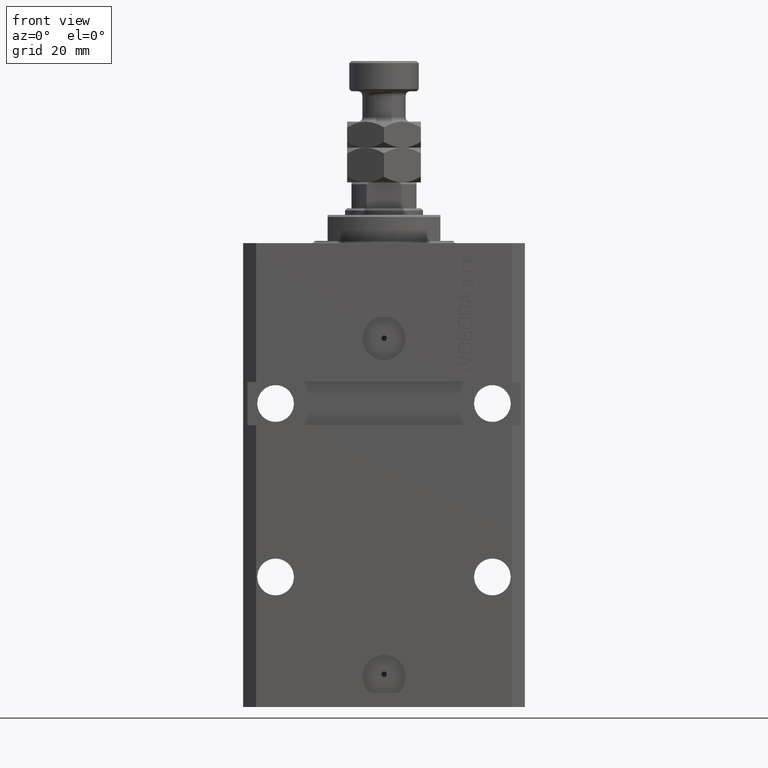
[diagram: clean part render]
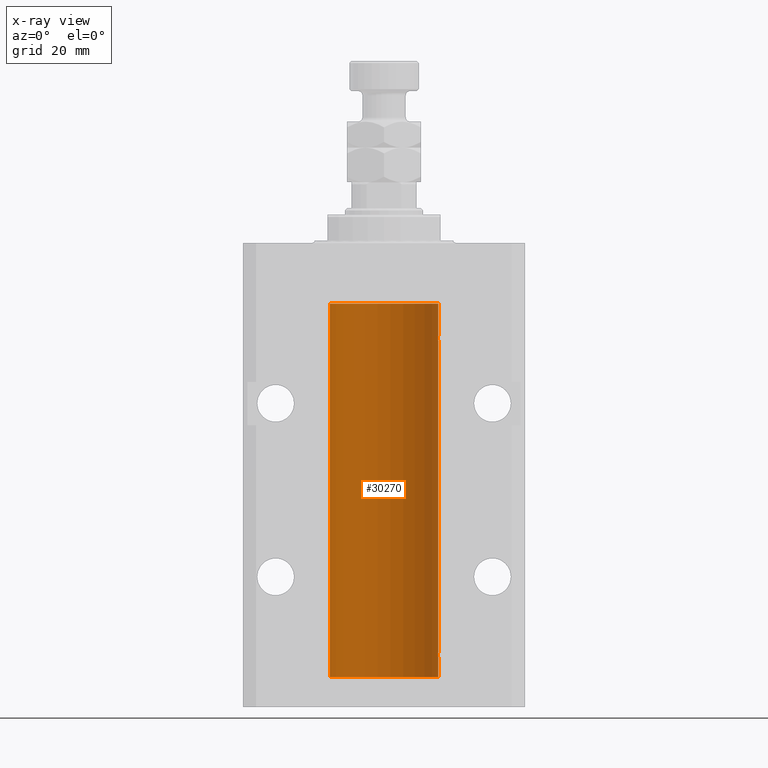
[diagram: x-ray — body ghosted, one internal face saturated and labeled with its STEP entity id]
A machine part, front view, then the same camera in x-ray: the body is ghosted and one INTERNAL B-rep face — a face not visible from any outside direction — is saturated and labeled: STEP entity #30270.
In plain terms, the highlighted cylindrical surface (partial cylindrical patch) has radius 12.5 mm, axis along (0, 0, 1).
Its self-contained STEP definition (entity closure, byte-faithful):
#18 = B_SPLINE_CURVE_WITH_KNOTS ( 'NONE', 3,
 ( #36995, #4348, #8154, #15307, #33656, #43344, #39285, #20943 ),
 .UNSPECIFIED., .F., .F.,
 ( 4, 2, 2, 4 ),
 ( 1.784246692340212412E-18, 0.0002443481056285665750, 0.0004886962112571313068, 0.0009773924225142606621 ),
 .UNSPECIFIED. ) ;
#25 = ORIENTED_EDGE ( 'NONE', *, *, #9317, .T. ) ;
#150 = ORIENTED_EDGE ( 'NONE', *, *, #23760, .T. ) ;
#1082 = ORIENTED_EDGE ( 'NONE', *, *, #21774, .F. ) ;
#1137 = VECTOR ( 'NONE', #8740, 1000.000000000000000 ) ;
#1195 = AXIS2_PLACEMENT_3D ( 'NONE', #35405, #6574, #38515 ) ;
#1267 = EDGE_CURVE ( 'NONE', #7777, #36564, #29805, .T. ) ;
#1437 = CARTESIAN_POINT ( 'NONE',  ( 12.50000000000000000, -1.470318446642941360E-15, -22.62500000000000000 ) ) ;
#1466 = CARTESIAN_POINT ( 'NONE',  ( -12.48810268015257741, 0.5573155909661239304, -94.67347410093871929 ) ) ;
#1546 = CARTESIAN_POINT ( 'NONE',  ( 12.50000000000000000, 0.000000000000000000, -100.0999999999999943 ) ) ;
#1794 = DIRECTION ( 'NONE',  ( -0.000000000000000000, -0.000000000000000000, 1.000000000000000000 ) ) ;
#1835 = CARTESIAN_POINT ( 'NONE',  ( -12.50000000000000000, -2.089494013101375120E-17, -21.37499999999999645 ) ) ;
#2223 = VERTEX_POINT ( 'NONE', #16992 ) ;
#2292 = CYLINDRICAL_SURFACE ( 'NONE', #1195, 12.50000000000000000 ) ;
#2616 = VERTEX_POINT ( 'NONE', #46674 ) ;
#3087 = VERTEX_POINT ( 'NONE', #1546 ) ;
#3382 = EDGE_CURVE ( 'NONE', #7777, #22558, #43924, .T. ) ;
#3863 = CARTESIAN_POINT ( 'NONE',  ( -12.48520330846397819, 0.6088355886774127201, -22.16325431852561323 ) ) ;
#4032 = CARTESIAN_POINT ( 'NONE',  ( 12.49999999999999112, 0.1631389616600879555, -21.37500000000019185 ) ) ;
#4093 = CARTESIAN_POINT ( 'NONE',  ( -12.50000000000017941, 3.883381646606358354E-13, -22.62500000000358824 ) ) ;
#4348 = CARTESIAN_POINT ( 'NONE',  ( 12.49999999999999822, 0.08262306818362624705, -95.62499999999998579 ) ) ;
#5142 = CARTESIAN_POINT ( 'NONE',  ( 12.50000000000000000, 0.000000000000000000, -100.0999999999999943 ) ) ;
#6040 = CARTESIAN_POINT ( 'NONE',  ( 12.50000000000017941, 3.868073689162038701E-13, -94.37499999999640465 ) ) ;
#6441 = VECTOR ( 'NONE', #22583, 1000.000000000000000 ) ;
#6519 = B_SPLINE_CURVE_WITH_KNOTS ( 'NONE', 3,
 ( #22765, #29443, #23942, #24171, #13201, #45148, #30614, #6040 ),
 .UNSPECIFIED., .F., .F.,
 ( 4, 2, 2, 4 ),
 ( 0.0009773924225142606621, 0.001221629287363811033, 0.001465866152213361404, 0.001954339881912461711 ),
 .UNSPECIFIED. ) ;
#6574 = DIRECTION ( 'NONE',  ( -0.000000000000000000, -0.000000000000000000, 1.000000000000000000 ) ) ;
#6652 = EDGE_CURVE ( 'NONE', #35313, #26614, #27574, .T. ) ;
#6739 = VERTEX_POINT ( 'NONE', #13029 ) ;
#7777 = VERTEX_POINT ( 'NONE', #23327 ) ;
#8154 = CARTESIAN_POINT ( 'NONE',  ( 12.49915742890631876, 0.1636982395582385896, -95.60872397847028026 ) ) ;
#8260 = CARTESIAN_POINT ( 'NONE',  ( 12.50000000000000000, 0.000000000000000000, -100.0999999999999943 ) ) ;
#8733 = LINE ( 'NONE', #8260, #6441 ) ;
#8740 = DIRECTION ( 'NONE',  ( -0.000000000000000000, -0.000000000000000000, 1.000000000000000000 ) ) ;
#9317 = EDGE_CURVE ( 'NONE', #25329, #22558, #42911, .T. ) ;
#9599 = VECTOR ( 'NONE', #1794, 1000.000000000000000 ) ;
#9791 = CARTESIAN_POINT ( 'NONE',  ( 0.000000000000000000, 0.000000000000000000, -13.99999999999999822 ) ) ;
#10554 = VERTEX_POINT ( 'NONE', #23988 ) ;
#10598 = ORIENTED_EDGE ( 'NONE', *, *, #3382, .F. ) ;
#11654 = CARTESIAN_POINT ( 'NONE',  ( 12.48810305280568222, 0.5461368461738448365, -21.68525466142676805 ) ) ;
#12192 = CARTESIAN_POINT ( 'NONE',  ( -12.50000000000017941, 3.883381774819353300E-13, -95.62500000000359535 ) ) ;
#12406 = CIRCLE ( 'NONE', #32180, 12.50000000000000000 ) ;
#12634 = EDGE_CURVE ( 'NONE', #14368, #6739, #18, .T. ) ;
#12903 = CARTESIAN_POINT ( 'NONE',  ( -12.48809959379011403, 0.5462151254764922026, -95.31461370481613926 ) ) ;
#13029 = CARTESIAN_POINT ( 'NONE',  ( 12.48436522214846711, 0.6250000000078848039, -94.99999999999923261 ) ) ;
#13201 = CARTESIAN_POINT ( 'NONE',  ( 12.49012055744648997, 0.5002956126656082914, -94.61641710202405875 ) ) ;
#13774 = EDGE_CURVE ( 'NONE', #26614, #36726, #21544, .T. ) ;
#14256 = ORIENTED_EDGE ( 'NONE', *, *, #12634, .T. ) ;
#14368 = VERTEX_POINT ( 'NONE', #43243 ) ;
#14767 = CARTESIAN_POINT ( 'NONE',  ( 12.48436522214888100, 0.6249999999996762590, -21.91847339462350774 ) ) ;
#15062 = CARTESIAN_POINT ( 'NONE',  ( -12.49011732893843529, 0.5003763274120274218, -22.38348111289287701 ) ) ;
#15082 = DIRECTION ( 'NONE',  ( -0.000000000000000000, -0.000000000000000000, 1.000000000000000000 ) ) ;
#15307 = CARTESIAN_POINT ( 'NONE',  ( 12.49625698805481022, 0.3151108292486944906, -95.54593695688171806 ) ) ;
#15592 = CARTESIAN_POINT ( 'NONE',  ( -12.50000000000000000, 1.530808498934191521E-15, -100.0999999999999943 ) ) ;
#15733 = CARTESIAN_POINT ( 'NONE',  ( 12.49999999999999822, 0.08262306818362555316, -22.62499999999997513 ) ) ;
#16885 = ORIENTED_EDGE ( 'NONE', *, *, #13774, .T. ) ;
#16992 = CARTESIAN_POINT ( 'NONE',  ( 12.50000000000000000, 0.000000000000000000, -13.99999999999999822 ) ) ;
#18496 = CIRCLE ( 'NONE', #40570, 12.50000000000000000 ) ;
#18512 = ORIENTED_EDGE ( 'NONE', *, *, #19826, .F. ) ;
#18634 = CARTESIAN_POINT ( 'NONE',  ( -12.48436813453758454, 0.6249418250771192618, -21.83668996798922635 ) ) ;
#18829 = LINE ( 'NONE', #37164, #20013 ) ;
#19208 = DIRECTION ( 'NONE',  ( 0.000000000000000000, 0.000000000000000000, 1.000000000000000000 ) ) ;
#19808 = CARTESIAN_POINT ( 'NONE',  ( -12.48436376893640620, 0.6250290278979871994, -95.08132082824478459 ) ) ;
#19826 = EDGE_CURVE ( 'NONE', #3087, #24601, #12406, .T. ) ;
#20013 = VECTOR ( 'NONE', #40045, 1000.000000000000000 ) ;
#20201 = CARTESIAN_POINT ( 'NONE',  ( -12.50000000000017941, 3.883381774819353300E-13, -95.62500000000359535 ) ) ;
#20261 = EDGE_CURVE ( 'NONE', #36726, #10554, #43040, .T. ) ;
#20637 = FACE_OUTER_BOUND ( 'NONE', #45355, .T. ) ;
#20943 = CARTESIAN_POINT ( 'NONE',  ( 12.48436522214846711, 0.6250000000078848039, -94.99999999999923261 ) ) ;
#21544 = B_SPLINE_CURVE_WITH_KNOTS ( 'NONE', 3,
 ( #1437, #15733, #36944, #37403, #37645, #30516, #44816, #29582 ),
 .UNSPECIFIED., .F., .F.,
 ( 4, 2, 2, 4 ),
 ( 2.576359803311334014E-18, 0.0002443481056285645150, 0.0004886962112571264279, 0.0009773924225142506875 ),
 .UNSPECIFIED. ) ;
#21774 = EDGE_CURVE ( 'NONE', #24601, #36564, #31049, .T. ) ;
#21854 = CARTESIAN_POINT ( 'NONE',  ( -12.50000000000017941, 3.883381646606358354E-13, -22.62500000000358824 ) ) ;
#22558 = VERTEX_POINT ( 'NONE', #21854 ) ;
#22583 = DIRECTION ( 'NONE',  ( -0.000000000000000000, -0.000000000000000000, 1.000000000000000000 ) ) ;
#22684 = ORIENTED_EDGE ( 'NONE', *, *, #1267, .T. ) ;
#22765 = CARTESIAN_POINT ( 'NONE',  ( 12.48436522214846711, 0.6250000000078848039, -94.99999999999923261 ) ) ;
#22968 = CARTESIAN_POINT ( 'NONE',  ( 12.48436522214846889, 0.6250000000078781426, -21.99999999999923261 ) ) ;
#23327 = CARTESIAN_POINT ( 'NONE',  ( -12.50000000000000000, -1.522152011595579853E-14, -94.37500000000000000 ) ) ;
#23736 = ORIENTED_EDGE ( 'NONE', *, *, #27387, .T. ) ;
#23760 = EDGE_CURVE ( 'NONE', #2223, #2616, #18496, .T. ) ;
#23870 = CARTESIAN_POINT ( 'NONE',  ( -12.49011732893843529, 0.5003763274120199833, -95.38348111289285214 ) ) ;
#23942 = CARTESIAN_POINT ( 'NONE',  ( 12.48520578595314845, 0.6087855079133740466, -94.83656717509346379 ) ) ;
#23988 = CARTESIAN_POINT ( 'NONE',  ( 12.50000000000017941, 3.868073565084946818E-13, -21.37499999999641176 ) ) ;
#24125 = DIRECTION ( 'NONE',  ( -0.000000000000000000, -0.000000000000000000, 1.000000000000000000 ) ) ;
#24171 = CARTESIAN_POINT ( 'NONE',  ( 12.48810305280568222, 0.5461368461738485003, -94.68525466142676805 ) ) ;
#24341 = EDGE_CURVE ( 'NONE', #25329, #2616, #18829, .T. ) ;
#24601 = VERTEX_POINT ( 'NONE', #15592 ) ;
#24697 = ORIENTED_EDGE ( 'NONE', *, *, #20261, .T. ) ;
#25111 = CARTESIAN_POINT ( 'NONE',  ( -12.49915784441386890, 0.1636601911727947889, -21.39126818989430490 ) ) ;
#25329 = VERTEX_POINT ( 'NONE', #1835 ) ;
#25804 = CARTESIAN_POINT ( 'NONE',  ( -12.50000000000000000, -2.089494013101375120E-17, -21.37499999999999645 ) ) ;
#26614 = VERTEX_POINT ( 'NONE', #28200 ) ;
#26742 = CARTESIAN_POINT ( 'NONE',  ( -12.48436813453758631, 0.6249418250771134886, -94.83668996798924411 ) ) ;
#26980 = CARTESIAN_POINT ( 'NONE',  ( -12.50000000000000000, 0.08260426088727994276, -94.37499999999998579 ) ) ;
#27387 = EDGE_CURVE ( 'NONE', #10554, #2223, #8733, .T. ) ;
#27476 = CARTESIAN_POINT ( 'NONE',  ( 12.50000000000017941, 3.868073689162038701E-13, -94.37499999999640465 ) ) ;
#27574 = LINE ( 'NONE', #45449, #1137 ) ;
#27677 = CARTESIAN_POINT ( 'NONE',  ( -12.49422197749723829, 0.3843754434364257122, -94.50047099568094211 ) ) ;
#28200 = CARTESIAN_POINT ( 'NONE',  ( 12.50000000000000000, -1.470318446642941360E-15, -22.62500000000000000 ) ) ;
#28329 = VECTOR ( 'NONE', #24125, 1000.000000000000000 ) ;
#28913 = CARTESIAN_POINT ( 'NONE',  ( -12.49422197749724006, 0.3843754434364375916, -21.50047099568095277 ) ) ;
#29138 = CARTESIAN_POINT ( 'NONE',  ( -12.49999999999999289, 0.1631761135151241215, -22.62499999999984013 ) ) ;
#29443 = CARTESIAN_POINT ( 'NONE',  ( 12.48436522214888100, 0.6249999999996834754, -94.91847339462351840 ) ) ;
#29545 = CARTESIAN_POINT ( 'NONE',  ( 12.49012055744648997, 0.5002956126655976332, -21.61641710202404454 ) ) ;
#29582 = CARTESIAN_POINT ( 'NONE',  ( 12.48436522214846889, 0.6250000000078781426, -21.99999999999923261 ) ) ;
#29609 = CARTESIAN_POINT ( 'NONE',  ( -12.49631005746706336, 0.3253680783018528255, -22.55856740465392463 ) ) ;
#29805 = B_SPLINE_CURVE_WITH_KNOTS ( 'NONE', 3,
 ( #30785, #26980, #30316, #31246, #27677, #1466, #26742, #19808, #38381, #12903, #23870, #44845, #38145, #12192 ),
 .UNSPECIFIED., .F., .F.,
 ( 4, 2, 2, 2, 2, 2, 4 ),
 ( 3.486178718436696769E-18, 0.0002442924852390829216, 0.0004885849704781623738, 0.0009771699409563507684, 0.001221462426195465403, 0.001465754911434580254, 0.001954339881912780900 ),
 .UNSPECIFIED. ) ;
#30270 = ADVANCED_FACE ( 'NONE', ( #20637 ), #2292, .F. ) ;
#30316 = CARTESIAN_POINT ( 'NONE',  ( -12.49915784441387068, 0.1636601911727894876, -94.39126818989429069 ) ) ;
#30516 = CARTESIAN_POINT ( 'NONE',  ( 12.48809900631782099, 0.5573988467445639694, -22.32640147935474317 ) ) ;
#30614 = CARTESIAN_POINT ( 'NONE',  ( 12.49999999999999822, 0.1631389616600901760, -94.37500000000024158 ) ) ;
#30785 = CARTESIAN_POINT ( 'NONE',  ( -12.50000000000000000, -1.522152011595579853E-14, -94.37500000000000000 ) ) ;
#31049 = LINE ( 'NONE', #38170, #28329 ) ;
#31246 = CARTESIAN_POINT ( 'NONE',  ( -12.49625855304194033, 0.3150454781037993479, -94.45402800297488000 ) ) ;
#32088 = EDGE_CURVE ( 'NONE', #3087, #14368, #37304, .T. ) ;
#32180 = AXIS2_PLACEMENT_3D ( 'NONE', #44726, #19208, #41617 ) ;
#33656 = CARTESIAN_POINT ( 'NONE',  ( 12.49421963472024721, 0.3844519291903572555, -95.49947303647047647 ) ) ;
#35265 = CARTESIAN_POINT ( 'NONE',  ( 12.48436522214846889, 0.6250000000078781426, -21.99999999999923261 ) ) ;
#35313 = VERTEX_POINT ( 'NONE', #27476 ) ;
#35405 = CARTESIAN_POINT ( 'NONE',  ( 0.000000000000000000, 0.000000000000000000, -100.0999999999999943 ) ) ;
#35532 = DIRECTION ( 'NONE',  ( 1.000000000000000000, 0.000000000000000000, 0.000000000000000000 ) ) ;
#36224 = CARTESIAN_POINT ( 'NONE',  ( 12.49631206032075958, 0.3252904079142808214, -21.44139700214925526 ) ) ;
#36564 = VERTEX_POINT ( 'NONE', #20201 ) ;
#36726 = VERTEX_POINT ( 'NONE', #22968 ) ;
#36737 = CARTESIAN_POINT ( 'NONE',  ( -12.48436376893640443, 0.6250290278979917513, -22.08132082824473486 ) ) ;
#36909 = CARTESIAN_POINT ( 'NONE',  ( 12.50000000000017941, 3.868073565084946818E-13, -21.37499999999641176 ) ) ;
#36944 = CARTESIAN_POINT ( 'NONE',  ( 12.49915742890631876, 0.1636982395582437522, -22.60872397847025539 ) ) ;
#36995 = CARTESIAN_POINT ( 'NONE',  ( 12.50000000000000000, -1.836039810331332019E-15, -95.62500000000000000 ) ) ;
#37164 = CARTESIAN_POINT ( 'NONE',  ( -12.50000000000000000, 1.530808498934191521E-15, -100.0999999999999943 ) ) ;
#37304 = LINE ( 'NONE', #5142, #9599 ) ;
#37403 = CARTESIAN_POINT ( 'NONE',  ( 12.49625698805480667, 0.3151108292486967666, -22.54593695688170385 ) ) ;
#37645 = CARTESIAN_POINT ( 'NONE',  ( 12.49421963472024366, 0.3844519291903583103, -22.49947303647044805 ) ) ;
#38145 = CARTESIAN_POINT ( 'NONE',  ( -12.49999999999999112, 0.1631761135151224562, -95.62499999999980105 ) ) ;
#38170 = CARTESIAN_POINT ( 'NONE',  ( -12.50000000000000000, 1.530808498934191521E-15, -100.0999999999999943 ) ) ;
#38357 = VECTOR ( 'NONE', #15082, 1000.000000000000000 ) ;
#38381 = CARTESIAN_POINT ( 'NONE',  ( -12.48520330846397997, 0.6088355886774070580, -95.16325431852561678 ) ) ;
#38515 = DIRECTION ( 'NONE',  ( 1.000000000000000000, 0.000000000000000000, 0.000000000000000000 ) ) ;
#39254 = ORIENTED_EDGE ( 'NONE', *, *, #24341, .F. ) ;
#39285 = CARTESIAN_POINT ( 'NONE',  ( 12.48436522214885969, 0.6250000000001505462, -95.16312747540308692 ) ) ;
#40045 = DIRECTION ( 'NONE',  ( -0.000000000000000000, -0.000000000000000000, 1.000000000000000000 ) ) ;
#40094 = CARTESIAN_POINT ( 'NONE',  ( -12.50000000000000000, 0.08260426088729219685, -21.37500000000000000 ) ) ;
#40348 = CARTESIAN_POINT ( 'NONE',  ( -12.50000000000000000, 1.530808498934191521E-15, -100.0999999999999943 ) ) ;
#40558 = CARTESIAN_POINT ( 'NONE',  ( -12.48809959379011403, 0.5462151254764975317, -22.31461370481611795 ) ) ;
#40570 = AXIS2_PLACEMENT_3D ( 'NONE', #9791, #42925, #35532 ) ;
#41617 = DIRECTION ( 'NONE',  ( 1.000000000000000000, 0.000000000000000000, 0.000000000000000000 ) ) ;
#41788 = EDGE_CURVE ( 'NONE', #6739, #35313, #6519, .T. ) ;
#42911 = B_SPLINE_CURVE_WITH_KNOTS ( 'NONE', 3,
 ( #25804, #40094, #25111, #43666, #28913, #43207, #18634, #36737, #3863, #40558, #15062, #29609, #29138, #4093 ),
 .UNSPECIFIED., .F., .F.,
 ( 4, 2, 2, 2, 2, 2, 4 ),
 ( 2.030551168097110502E-20, 0.0002442924852390969078, 0.0004885849704781938157, 0.0009771699409563880650, 0.001221462426195485135, 0.001465754911434582423, 0.001954339881912776130 ),
 .UNSPECIFIED. ) ;
#42925 = DIRECTION ( 'NONE',  ( 0.000000000000000000, 0.000000000000000000, 1.000000000000000000 ) ) ;
#43040 = B_SPLINE_CURVE_WITH_KNOTS ( 'NONE', 3,
 ( #35265, #14767, #43839, #11654, #29545, #36224, #4032, #36909 ),
 .UNSPECIFIED., .F., .F.,
 ( 4, 2, 2, 4 ),
 ( 0.0009773924225142506875, 0.001221629287363794770, 0.001465866152213338852, 0.001954339881912434389 ),
 .UNSPECIFIED. ) ;
#43207 = CARTESIAN_POINT ( 'NONE',  ( -12.48810268015257563, 0.5573155909661349217, -21.67347410093867666 ) ) ;
#43243 = CARTESIAN_POINT ( 'NONE',  ( 12.50000000000000000, -1.836039810331332019E-15, -95.62500000000000000 ) ) ;
#43344 = CARTESIAN_POINT ( 'NONE',  ( 12.48809900631782099, 0.5573988467445673001, -95.32640147935475738 ) ) ;
#43666 = CARTESIAN_POINT ( 'NONE',  ( -12.49625855304193678, 0.3150454781038042329, -21.45402800297484802 ) ) ;
#43839 = CARTESIAN_POINT ( 'NONE',  ( 12.48520578595314845, 0.6087855079133684955, -21.83656717509346024 ) ) ;
#43924 = LINE ( 'NONE', #40348, #38357 ) ;
#44726 = CARTESIAN_POINT ( 'NONE',  ( 0.000000000000000000, 0.000000000000000000, -100.0999999999999943 ) ) ;
#44816 = CARTESIAN_POINT ( 'NONE',  ( 12.48436522214885969, 0.6250000000001448841, -22.16312747540307271 ) ) ;
#44845 = CARTESIAN_POINT ( 'NONE',  ( -12.49631005746706514, 0.3253680783018457756, -95.55856740465388555 ) ) ;
#45069 = ORIENTED_EDGE ( 'NONE', *, *, #6652, .T. ) ;
#45148 = CARTESIAN_POINT ( 'NONE',  ( 12.49631206032076136, 0.3252904079142934779, -94.44139700214928723 ) ) ;
#45355 = EDGE_LOOP ( 'NONE', ( #1082, #18512, #46855, #14256, #46877, #45069, #16885, #24697, #23736, #150, #39254, #25, #10598, #22684 ) ) ;
#45449 = CARTESIAN_POINT ( 'NONE',  ( 12.50000000000000000, 0.000000000000000000, -100.0999999999999943 ) ) ;
#46674 = CARTESIAN_POINT ( 'NONE',  ( -12.50000000000000000, 1.530808498934191521E-15, -13.99999999999999822 ) ) ;
#46855 = ORIENTED_EDGE ( 'NONE', *, *, #32088, .T. ) ;
#46877 = ORIENTED_EDGE ( 'NONE', *, *, #41788, .T. ) ;